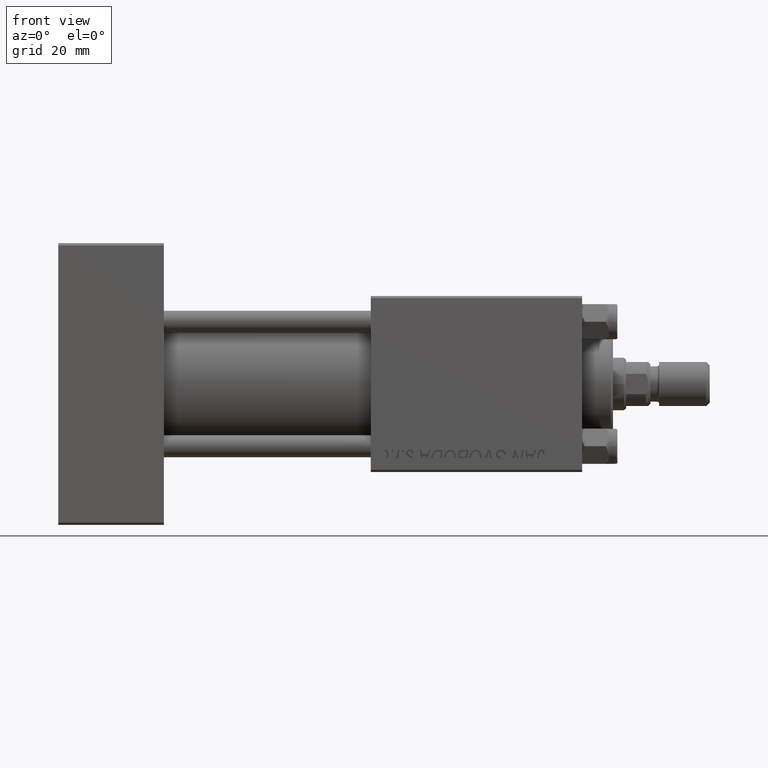
[diagram: clean part render]
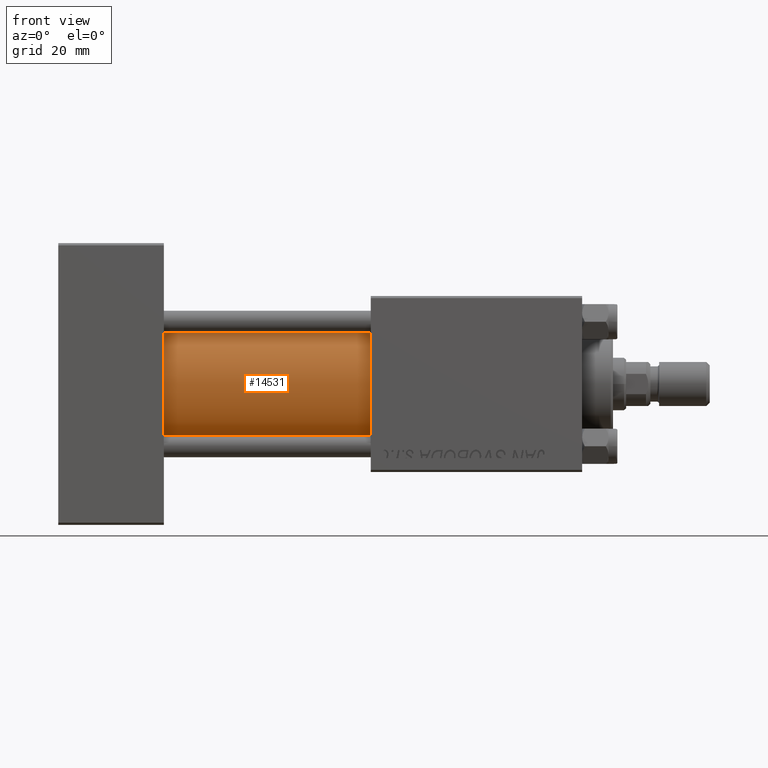
[diagram: same view with one face highlighted and labeled with its STEP entity id]
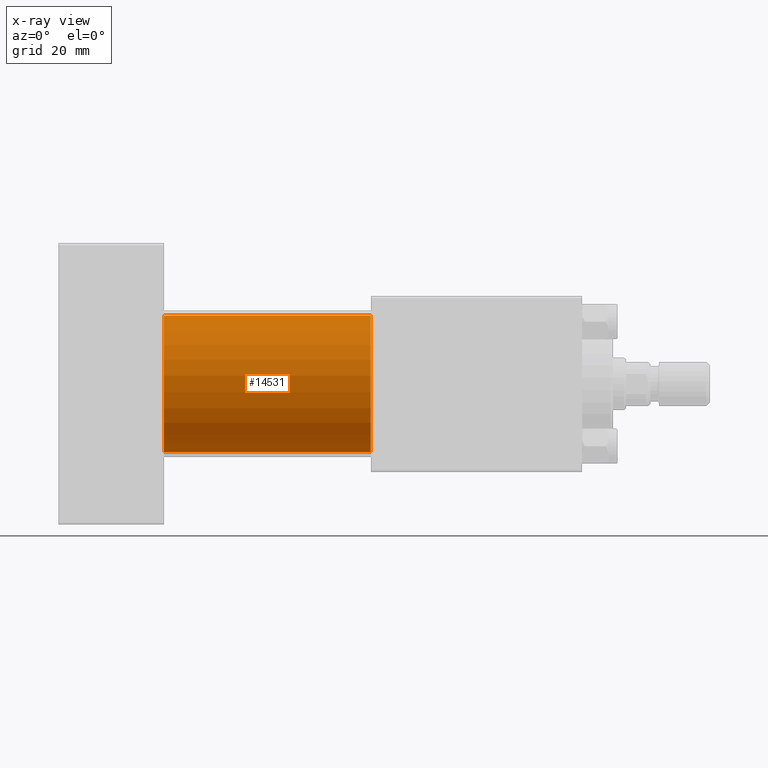
[diagram: x-ray of the same camera — body ghosted, the highlighted face saturated]
A machine part, front view. The second image highlights one B-rep face of the part: STEP entity #14531.
The next image is the same camera in x-ray: the body ghosted, the highlighted face saturated — about 0% of this face is hidden behind the body in this view.
In plain terms, the highlighted cylindrical surface (partial cylindrical patch) has radius 15.5 mm, axis along (-1, -0, -0).
Its self-contained STEP definition (entity closure, byte-faithful):
#1604 = VECTOR ( 'NONE', #6169, 1000.000000000000000 ) ;
#1759 = VERTEX_POINT ( 'NONE', #23872 ) ;
#2966 = EDGE_CURVE ( 'NONE', #32186, #1759, #13923, .T. ) ;
#4450 = VERTEX_POINT ( 'NONE', #42621 ) ;
#6169 = DIRECTION ( 'NONE',  ( -1.000000000000000000, -0.000000000000000000, -0.000000000000000000 ) ) ;
#7424 = CARTESIAN_POINT ( 'NONE',  ( 71.00000000000001421, -2.602085213965210642E-15, 15.50000000000000000 ) ) ;
#7471 = CARTESIAN_POINT ( 'NONE',  ( 71.00000000000001421, -7.038826752868131828E-16, -15.50000000000000000 ) ) ;
#8855 = CARTESIAN_POINT ( 'NONE',  ( 71.00000000000001421, -2.602085213965210642E-15, 0.000000000000000000 ) ) ;
#13923 = CIRCLE ( 'NONE', #43968, 15.50000000000000000 ) ;
#14167 = CARTESIAN_POINT ( 'NONE',  ( 71.00000000000001421, -2.602085213965210642E-15, 0.000000000000000000 ) ) ;
#14531 = ADVANCED_FACE ( 'NONE', ( #34259 ), #45735, .T. ) ;
#16246 = DIRECTION ( 'NONE',  ( 1.000000000000000000, 0.000000000000000000, 0.000000000000000000 ) ) ;
#17469 = EDGE_CURVE ( 'NONE', #4450, #32186, #26505, .T. ) ;
#17479 = CARTESIAN_POINT ( 'NONE',  ( 24.00000000000000000, -2.602085213965210642E-15, 15.50000000000000000 ) ) ;
#17624 = LINE ( 'NONE', #29838, #1604 ) ;
#23558 = ORIENTED_EDGE ( 'NONE', *, *, #17469, .T. ) ;
#23872 = CARTESIAN_POINT ( 'NONE',  ( 24.00000000000000000, -7.038826752868131828E-16, -15.50000000000000000 ) ) ;
#24096 = ORIENTED_EDGE ( 'NONE', *, *, #47055, .F. ) ;
#24632 = DIRECTION ( 'NONE',  ( 0.000000000000000000, 0.000000000000000000, -1.000000000000000000 ) ) ;
#26187 = EDGE_CURVE ( 'NONE', #44557, #1759, #17624, .T. ) ;
#26505 = LINE ( 'NONE', #7424, #33104 ) ;
#27009 = DIRECTION ( 'NONE',  ( -1.000000000000000000, -0.000000000000000000, -0.000000000000000000 ) ) ;
#28252 = AXIS2_PLACEMENT_3D ( 'NONE', #8855, #16246, #24632 ) ;
#28883 = ORIENTED_EDGE ( 'NONE', *, *, #2966, .T. ) ;
#29095 = CIRCLE ( 'NONE', #28252, 15.50000000000000000 ) ;
#29838 = CARTESIAN_POINT ( 'NONE',  ( 71.00000000000001421, -7.038826752868131828E-16, -15.50000000000000000 ) ) ;
#32186 = VERTEX_POINT ( 'NONE', #17479 ) ;
#33104 = VECTOR ( 'NONE', #27009, 1000.000000000000000 ) ;
#34259 = FACE_OUTER_BOUND ( 'NONE', #45686, .T. ) ;
#34604 = AXIS2_PLACEMENT_3D ( 'NONE', #14167, #49805, #45214 ) ;
#36070 = ORIENTED_EDGE ( 'NONE', *, *, #26187, .F. ) ;
#38853 = DIRECTION ( 'NONE',  ( 0.000000000000000000, 0.000000000000000000, 1.000000000000000000 ) ) ;
#42621 = CARTESIAN_POINT ( 'NONE',  ( 71.00000000000001421, -2.602085213965210642E-15, 15.50000000000000000 ) ) ;
#43968 = AXIS2_PLACEMENT_3D ( 'NONE', #46016, #50336, #38853 ) ;
#44557 = VERTEX_POINT ( 'NONE', #7471 ) ;
#45214 = DIRECTION ( 'NONE',  ( 0.000000000000000000, 0.000000000000000000, 1.000000000000000000 ) ) ;
#45686 = EDGE_LOOP ( 'NONE', ( #36070, #24096, #23558, #28883 ) ) ;
#45735 = CYLINDRICAL_SURFACE ( 'NONE', #34604, 15.50000000000000000 ) ;
#46016 = CARTESIAN_POINT ( 'NONE',  ( 24.00000000000000000, -2.602085213965210642E-15, 0.000000000000000000 ) ) ;
#47055 = EDGE_CURVE ( 'NONE', #4450, #44557, #29095, .T. ) ;
#49805 = DIRECTION ( 'NONE',  ( -1.000000000000000000, -0.000000000000000000, -0.000000000000000000 ) ) ;
#50336 = DIRECTION ( 'NONE',  ( 1.000000000000000000, 0.000000000000000000, 0.000000000000000000 ) ) ;